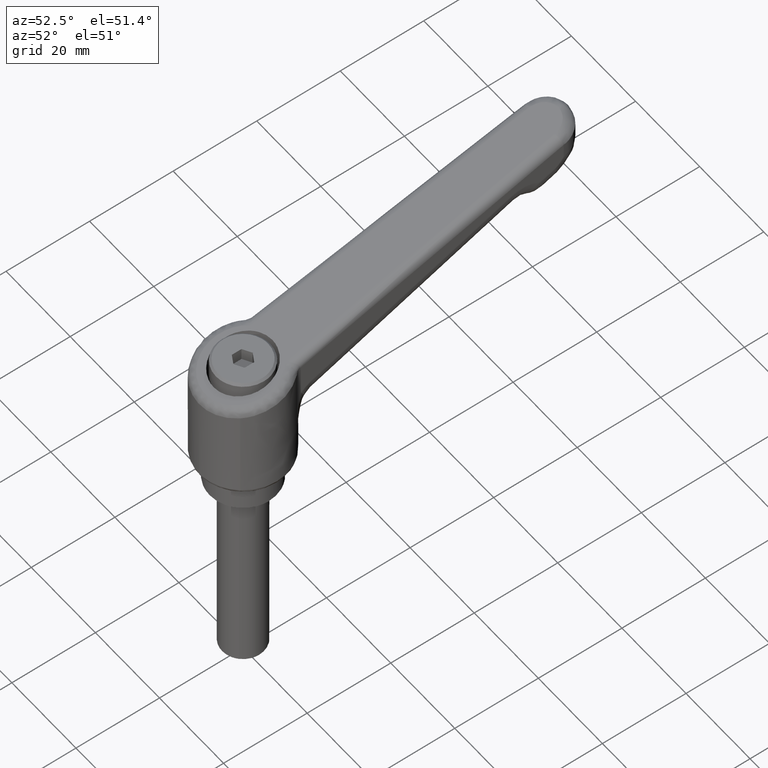
[diagram: clean part render]
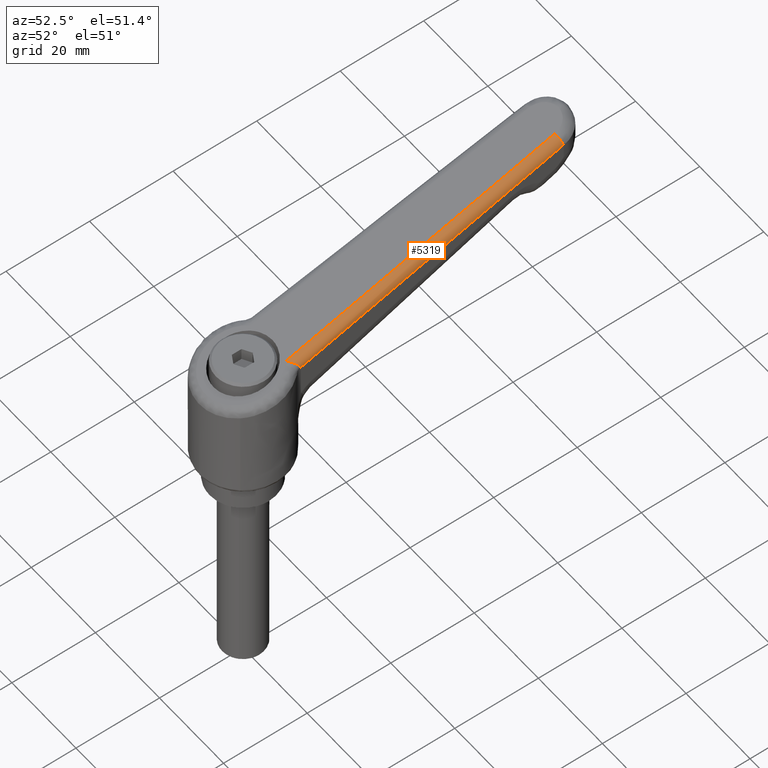
[diagram: same view with one face highlighted and labeled with its STEP entity id]
A machine part, auxiliary view. The second image highlights one B-rep face of the part: STEP entity #5319.
In plain terms, the highlighted face is a freeform B-spline surface patch.
Its self-contained STEP definition (entity closure, byte-faithful):
#4497=CARTESIAN_POINT('',(8.012310873974581,-7.484620097367070,26.550085542636701));
#4498=VERTEX_POINT('',#4497);
#4589=CARTESIAN_POINT('',(5.940270675266100,-5.519973294428710,28.072980452360650));
#4590=VERTEX_POINT('',#4589);
#4591=CARTESIAN_POINT('',(5.940270675266100,-5.519973294428710,28.072980452360650));
#4592=CARTESIAN_POINT('',(5.964480614774279,-5.547432011839613,28.079545863633360));
#4593=CARTESIAN_POINT('',(5.989265997644733,-5.575478822556796,28.085646383558871));
#4594=CARTESIAN_POINT('',(6.038516155136614,-5.631213356548575,28.096495456946311));
#4595=CARTESIAN_POINT('',(6.063177297555369,-5.659099459909704,28.101299809255352));
#4596=CARTESIAN_POINT('',(6.137280046364706,-5.742805844437203,28.113834462730111));
#4597=CARTESIAN_POINT('',(6.236400805728932,-5.854542999162270,28.125544736099268));
#4598=CARTESIAN_POINT('',(6.336298588807207,-5.966438066856086,28.126912716068549));
#4599=CARTESIAN_POINT('',(6.436675591760115,-6.078354399790436,28.122829516031480));
#4600=CARTESIAN_POINT('',(6.487147811663362,-6.134369565379744,28.118035300121900));
#4601=CARTESIAN_POINT('',(6.637506585705856,-6.300205416661115,28.095263813924849));
#4602=CARTESIAN_POINT('',(6.736954891199125,-6.408531870184022,28.068977035153210));
#4603=CARTESIAN_POINT('',(6.885342057876265,-6.566842114411010,28.011153382002099));
#4604=CARTESIAN_POINT('',(6.934758550251050,-6.618999503856220,27.988751941200920));
#4605=CARTESIAN_POINT('',(7.033042439528751,-6.721321435379911,27.937412480050320));
#4606=CARTESIAN_POINT('',(7.081414836673228,-6.770971804287339,27.908742853052569));
#4607=CARTESIAN_POINT('',(7.224287841670980,-6.915104772998762,27.813444946194931));
#4608=CARTESIAN_POINT('',(7.316569309393523,-7.004842122085285,27.737656338635571));
#4609=CARTESIAN_POINT('',(7.428105372921928,-7.107278983547890,27.625106711646961));
#4610=CARTESIAN_POINT('',(7.450184111504109,-7.127238494884410,27.601723402679461));
#4611=CARTESIAN_POINT('',(7.493405659117809,-7.165635710814681,27.553690359204179));
#4612=CARTESIAN_POINT('',(7.514615506485982,-7.184135410504219,27.528974407131280));
#4613=CARTESIAN_POINT('',(7.577044525621799,-7.237497692518466,27.452706481559691));
#4614=CARTESIAN_POINT('',(7.617067206689870,-7.270230299298772,27.399041363525900));
#4615=CARTESIAN_POINT('',(7.693841030512747,-7.329649397719105,27.285803436918680));
#4616=CARTESIAN_POINT('',(7.730593603946318,-7.356338908162788,27.226233430740340));
#4617=CARTESIAN_POINT('',(7.783102198798400,-7.391379817879831,27.132058676845709));
#4618=CARTESIAN_POINT('',(7.800105829996444,-7.402179796499143,27.099957161307181));
#4619=CARTESIAN_POINT('',(7.832689216794131,-7.421735625142204,27.035147266450998));
#4620=CARTESIAN_POINT('',(7.848333675848410,-7.430535310697348,27.002324726392668));
#4621=CARTESIAN_POINT('',(7.923350869016922,-7.469653137180289,26.836138127920091));
#4622=CARTESIAN_POINT('',(7.973256513195769,-7.485525234275999,26.696643363037150));
#4623=CARTESIAN_POINT('',(8.012310873974581,-7.484620097367070,26.550085542636701));
#4624=B_SPLINE_CURVE_WITH_KNOTS('',3,(#4591,#4592,#4593,#4594,#4595,#4596,#4597,#4598,#4599,#4600,#4601,#4602,#4603,#4604,#4605,#4606,#4607,#4608,#4609,#4610,#4611,#4612,#4613,#4614,#4615,#4616,#4617,#4618,#4619,#4620,#4621,#4622,#4623),.UNSPECIFIED.,.F.,.U.,(4,2,2,1,2,2,2,2,2,2,2,2,2,2,2,2,4),(0.0,0.031250000000000,0.062500000000000,0.124999999999998,0.187499999999997,0.249999999999996,0.374999999999993,0.437499999999992,0.499999999999991,0.624999999999988,0.656249999999988,0.687499999999988,0.749999999999990,0.812499999999992,0.843749999999994,0.874999999999995,1.0),.UNSPECIFIED.);
#4625=EDGE_CURVE('',#4590,#4498,#4624,.T.);
#5277=CARTESIAN_POINT('',(4.873917458269680,-7.557280377013173,25.680912646936669));
#5278=CARTESIAN_POINT('',(73.825326263893544,-5.959239498040288,44.379611026211457));
#5279=CARTESIAN_POINT('',(4.313314711943701,-7.588994246662201,27.750844383067999));
#5280=CARTESIAN_POINT('',(73.264723517567560,-5.990953367689299,46.449542762342787));
#5281=CARTESIAN_POINT('',(4.297965351809046,-5.448038072935896,27.624473261815279));
#5282=CARTESIAN_POINT('',(73.249374157432925,-3.849997193962995,46.323171641090063));
#5290=(BOUNDED_SURFACE()B_SPLINE_SURFACE(1,2,((#5277,#5279,#5281),(#5278,#5280,#5282)),.UNSPECIFIED.,.F.,.F.,.U.)B_SPLINE_SURFACE_WITH_KNOTS((2,2),(3,3),(0.0,71.459721745961403),(0.0,3.478498999687471),.UNSPECIFIED.)GEOMETRIC_REPRESENTATION_ITEM()RATIONAL_B_SPLINE_SURFACE(((1.0,0.681998360062499,1.0),(1.0,0.681998360062499,1.0)))REPRESENTATION_ITEM('')SURFACE());
#5291=CARTESIAN_POINT('',(71.569214214229888,-3.998934980117811,45.870670759820300));
#5292=VERTEX_POINT('',#5291);
#5293=CARTESIAN_POINT('',(5.940270675266100,-5.519973294428710,28.072980452360650));
#5294=CARTESIAN_POINT('',(71.569214214229888,-3.998934980117811,45.870670759820300));
#5295=QUASI_UNIFORM_CURVE('',1,(#5293,#5294),.UNSPECIFIED.,.F.,.U.);
#5296=EDGE_CURVE('',#4590,#5292,#5295,.T.);
#5297=ORIENTED_EDGE('',*,*,#5296,.F.);
#5298=ORIENTED_EDGE('',*,*,#4625,.T.);
#5299=CARTESIAN_POINT('',(72.139020671948700,-5.998398053955600,43.940390183805903));
#5300=VERTEX_POINT('',#5299);
#5301=CARTESIAN_POINT('',(72.139020671948700,-5.998398053955600,43.940390183805903));
#5302=CARTESIAN_POINT('',(8.012310873974581,-7.484620097367070,26.550085542636701));
#5303=QUASI_UNIFORM_CURVE('',1,(#5301,#5302),.UNSPECIFIED.,.F.,.U.);
#5304=EDGE_CURVE('',#5300,#4498,#5303,.T.);
#5305=ORIENTED_EDGE('',*,*,#5304,.F.);
#5306=CARTESIAN_POINT('',(72.139020671948700,-5.998398053955600,43.940390183805903));
#5307=CARTESIAN_POINT('',(72.074567614085694,-6.000094331607682,44.178205660173553));
#5308=CARTESIAN_POINT('',(71.956651862544447,-5.919609059436716,44.606141245407713));
#5309=CARTESIAN_POINT('',(71.817869826191796,-5.635199801748644,45.093593319258069));
#5310=CARTESIAN_POINT('',(71.702821783974599,-5.249650780138574,45.484882667074267));
#5311=CARTESIAN_POINT('',(71.608142440034214,-4.721382547850450,45.788865318910247));
#5312=CARTESIAN_POINT('',(71.574476388731526,-4.245285386776374,45.872320269026027));
#5313=CARTESIAN_POINT('',(71.569214214229888,-3.998934980117811,45.870670759820300));
#5314=B_SPLINE_CURVE_WITH_KNOTS('',3,(#5306,#5307,#5308,#5309,#5310,#5311,#5312,#5313),.UNSPECIFIED.,.F.,.U.,(4,1,1,1,1,4),(0.000000142329116,0.739169650578771,1.330533772964026,1.724702062414902,2.414631874746777,3.153801250752477),.UNSPECIFIED.);
#5315=EDGE_CURVE('',#5300,#5292,#5314,.T.);
#5316=ORIENTED_EDGE('',*,*,#5315,.T.);
#5317=EDGE_LOOP('',(#5297,#5298,#5305,#5316));
#5318=FACE_OUTER_BOUND('',#5317,.T.);
#5319=ADVANCED_FACE('',(#5318),#5290,.T.);